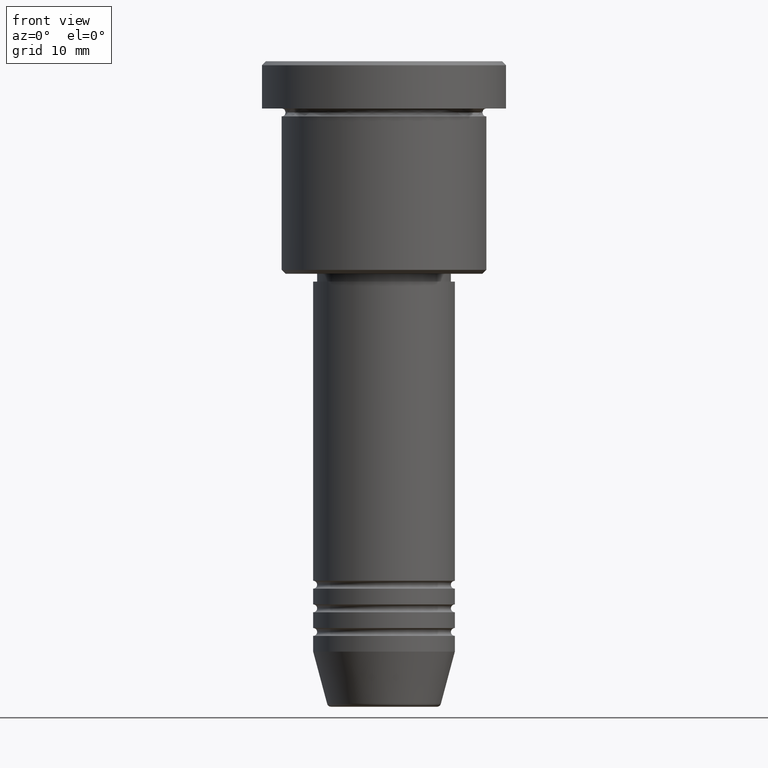
[diagram: clean part render]
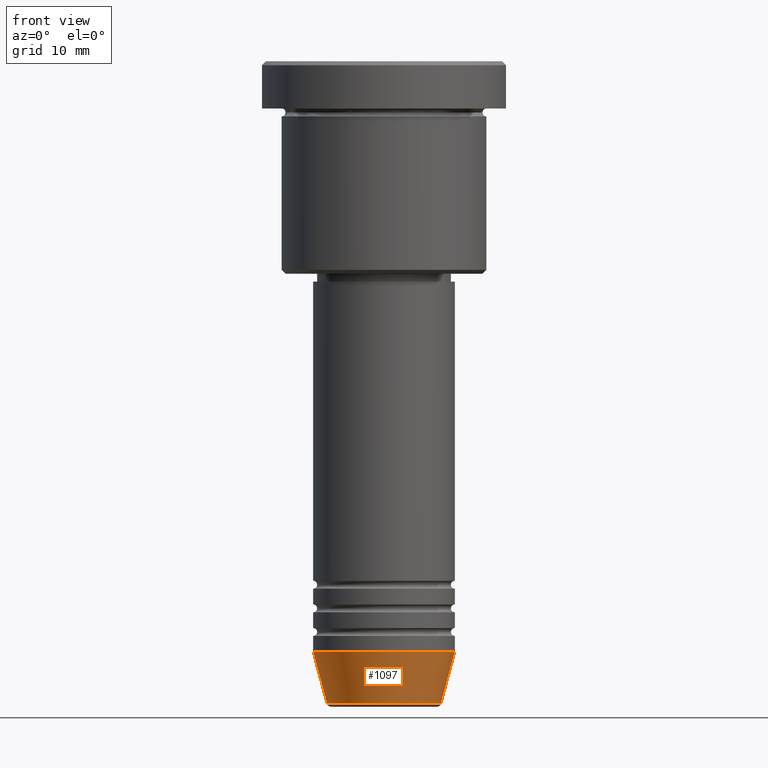
[diagram: same view with one face highlighted and labeled with its STEP entity id]
A machine part, front view. The second image highlights one B-rep face of the part: STEP entity #1097.
In plain terms, the highlighted conical surface has half-angle 15 deg.
Its self-contained STEP definition (entity closure, byte-faithful):
#40 = DIRECTION ( 'NONE',  ( 1.000000000000000000, 0.000000000000000000, 0.000000000000000000 ) ) ;
#51 = ORIENTED_EDGE ( 'NONE', *, *, #862, .T. ) ;
#87 = CONICAL_SURFACE ( 'NONE', #653, 9.000000000000000000, 0.2617993877991500740 ) ;
#127 = EDGE_CURVE ( 'NONE', #1087, #504, #176, .T. ) ;
#143 = CARTESIAN_POINT ( 'NONE',  ( 0.000000000000000000, 0.000000000000000000, -75.00000000000001421 ) ) ;
#176 = CIRCLE ( 'NONE', #1016, 9.000000000000000000 ) ;
#184 = CARTESIAN_POINT ( 'NONE',  ( -9.000000000000000000, 1.102182119232617714E-15, -75.00000000000001421 ) ) ;
#186 = ORIENTED_EDGE ( 'NONE', *, *, #527, .T. ) ;
#200 = DIRECTION ( 'NONE',  ( 1.000000000000000000, 0.000000000000000000, 0.000000000000000000 ) ) ;
#215 = AXIS2_PLACEMENT_3D ( 'NONE', #495, #1020, #200 ) ;
#216 = ORIENTED_EDGE ( 'NONE', *, *, #694, .F. ) ;
#242 = VECTOR ( 'NONE', #378, 1000.000000000000000 ) ;
#283 = LINE ( 'NONE', #1122, #242 ) ;
#319 = CARTESIAN_POINT ( 'NONE',  ( -7.223655072137189492, 9.934123627281765110E-16, -81.62940952255128479 ) ) ;
#378 = DIRECTION ( 'NONE',  ( 0.2588190451025213501, 0.000000000000000000, 0.9659258262890680902 ) ) ;
#437 = EDGE_LOOP ( 'NONE', ( #216, #186, #51, #649 ) ) ;
#449 = CIRCLE ( 'NONE', #215, 7.223655072137188604 ) ;
#494 = FACE_OUTER_BOUND ( 'NONE', #437, .T. ) ;
#495 = CARTESIAN_POINT ( 'NONE',  ( 0.000000000000000000, 0.000000000000000000, -81.62940952255128479 ) ) ;
#504 = VERTEX_POINT ( 'NONE', #848 ) ;
#515 = DIRECTION ( 'NONE',  ( -0.000000000000000000, -0.000000000000000000, 1.000000000000000000 ) ) ;
#527 = EDGE_CURVE ( 'NONE', #1005, #1046, #449, .T. ) ;
#550 = LINE ( 'NONE', #184, #983 ) ;
#616 = CARTESIAN_POINT ( 'NONE',  ( -9.000000000000000000, 1.102182119232617714E-15, -75.00000000000001421 ) ) ;
#647 = DIRECTION ( 'NONE',  ( -0.2588190451025213501, 3.169619151431772337E-17, 0.9659258262890680902 ) ) ;
#649 = ORIENTED_EDGE ( 'NONE', *, *, #127, .F. ) ;
#653 = AXIS2_PLACEMENT_3D ( 'NONE', #143, #867, #40 ) ;
#694 = EDGE_CURVE ( 'NONE', #1005, #1087, #550, .T. ) ;
#848 = CARTESIAN_POINT ( 'NONE',  ( 9.000000000000000000, 0.000000000000000000, -75.00000000000001421 ) ) ;
#862 = EDGE_CURVE ( 'NONE', #1046, #504, #283, .T. ) ;
#867 = DIRECTION ( 'NONE',  ( -0.000000000000000000, -0.000000000000000000, 1.000000000000000000 ) ) ;
#877 = CARTESIAN_POINT ( 'NONE',  ( 0.000000000000000000, 0.000000000000000000, -75.00000000000001421 ) ) ;
#981 = DIRECTION ( 'NONE',  ( 1.000000000000000000, 0.000000000000000000, 0.000000000000000000 ) ) ;
#983 = VECTOR ( 'NONE', #647, 1000.000000000000000 ) ;
#1005 = VERTEX_POINT ( 'NONE', #319 ) ;
#1016 = AXIS2_PLACEMENT_3D ( 'NONE', #877, #515, #981 ) ;
#1020 = DIRECTION ( 'NONE',  ( -0.000000000000000000, -0.000000000000000000, 1.000000000000000000 ) ) ;
#1046 = VERTEX_POINT ( 'NONE', #1146 ) ;
#1087 = VERTEX_POINT ( 'NONE', #616 ) ;
#1097 = ADVANCED_FACE ( 'NONE', ( #494 ), #87, .T. ) ;
#1122 = CARTESIAN_POINT ( 'NONE',  ( 9.000000000000000000, 0.000000000000000000, -75.00000000000001421 ) ) ;
#1146 = CARTESIAN_POINT ( 'NONE',  ( 7.223655072137188604, 0.000000000000000000, -81.62940952255128479 ) ) ;